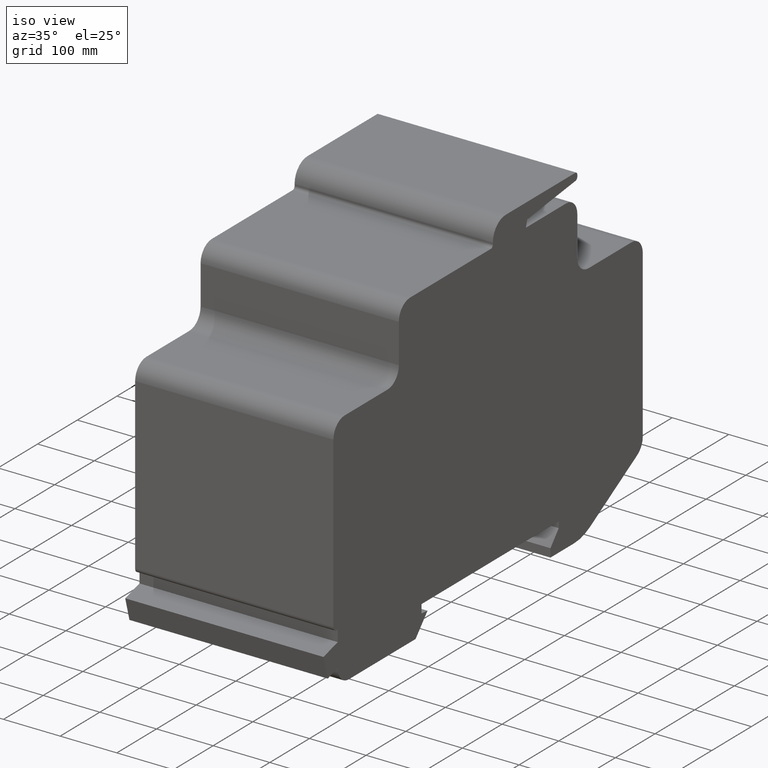
[diagram: clean part render]
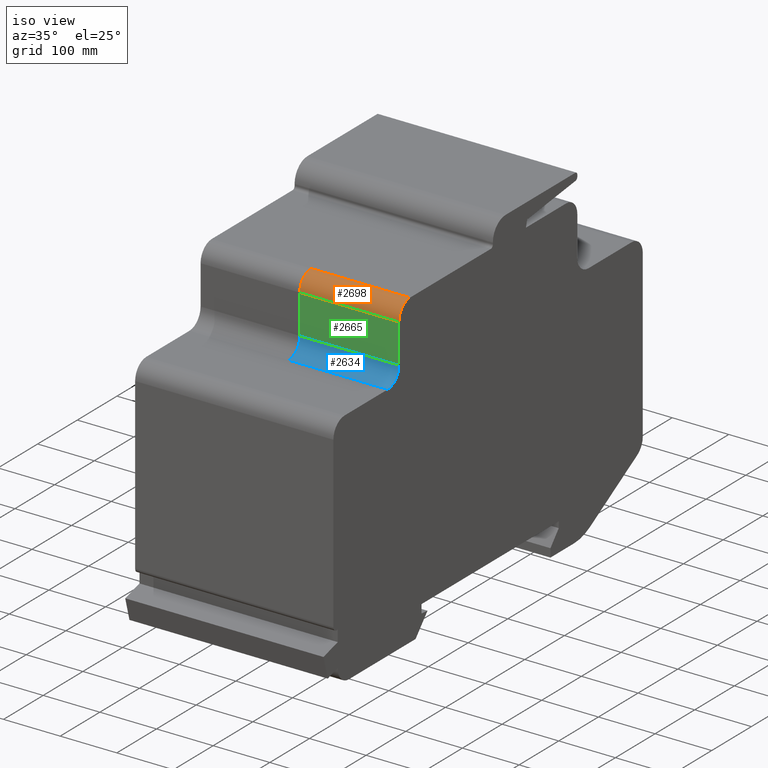
[diagram: same view with three faces highlighted in distinct colors, each labeled with its STEP entity id]
A machine part, iso view with three faces highlighted in distinct colors.
Their STEP definitions:

[orange] entity #2698 — the highlighted cylindrical surface (edge-blend (fillet) strip) has radius 28 mm, axis along (1, 0, 0).
#2640=CARTESIAN_POINT('',(350.00000000000057,-403.20000000000022,472.0));
#2641=VERTEX_POINT('',#2640);
#2648=CARTESIAN_POINT('',(175.00000000000028,-403.20000000000022,472.0));
#2649=VERTEX_POINT('',#2648);
#2650=CARTESIAN_POINT('',(175.00000000000028,-403.20000000000022,472.0));
#2651=DIRECTION('',(1.0,0.0,0.0));
#2652=VECTOR('',#2651,175.00000000000028);
#2653=LINE('',#2650,#2652);
#2654=EDGE_CURVE('',#2649,#2641,#2653,.T.);
#2666=CARTESIAN_POINT('',(175.00000000000028,-375.20000000000027,471.99999999999989));
#2667=DIRECTION('',(1.0,0.0,0.0));
#2668=DIRECTION('',(0.0,-0.707106781186545,0.70710678118655));
#2669=AXIS2_PLACEMENT_3D('',#2666,#2667,#2668);
#2670=CYLINDRICAL_SURFACE('',#2669,28.000000000000004);
#2671=CARTESIAN_POINT('',(350.00000000000057,-375.2000000000001,499.99999999999994));
#2672=VERTEX_POINT('',#2671);
#2673=CARTESIAN_POINT('',(350.00000000000057,-375.20000000000027,471.99999999999989));
#2674=DIRECTION('',(-1.0,0.0,0.0));
#2675=DIRECTION('',(0.0,-0.707106781186545,0.70710678118655));
#2676=AXIS2_PLACEMENT_3D('',#2673,#2674,#2675);
#2677=CIRCLE('',#2676,28.000000000000004);
#2678=EDGE_CURVE('',#2641,#2672,#2677,.T.);
#2679=ORIENTED_EDGE('',*,*,#2678,.T.);
#2680=CARTESIAN_POINT('',(175.00000000000028,-375.2000000000001,499.99999999999994));
#2681=VERTEX_POINT('',#2680);
#2682=CARTESIAN_POINT('',(175.00000000000028,-375.2000000000001,499.99999999999994));
#2683=DIRECTION('',(1.0,0.0,0.0));
#2684=VECTOR('',#2683,175.00000000000028);
#2685=LINE('',#2682,#2684);
#2686=EDGE_CURVE('',#2681,#2672,#2685,.T.);
#2687=ORIENTED_EDGE('',*,*,#2686,.F.);
#2688=CARTESIAN_POINT('',(175.00000000000028,-375.20000000000027,471.99999999999989));
#2689=DIRECTION('',(-1.0,0.0,0.0));
#2690=DIRECTION('',(0.0,-0.707106781186545,0.70710678118655));
#2691=AXIS2_PLACEMENT_3D('',#2688,#2689,#2690);
#2692=CIRCLE('',#2691,28.000000000000004);
#2693=EDGE_CURVE('',#2649,#2681,#2692,.T.);
#2694=ORIENTED_EDGE('',*,*,#2693,.F.);
#2695=ORIENTED_EDGE('',*,*,#2654,.T.);
#2696=EDGE_LOOP('',(#2679,#2687,#2694,#2695));
#2697=FACE_OUTER_BOUND('',#2696,.T.);
#2698=ADVANCED_FACE('',(#2697),#2670,.T.);

[blue] entity #2634 — the highlighted cylindrical surface (edge-blend (fillet) strip) has radius 28 mm, axis along (1, 0, 0).
#2576=CARTESIAN_POINT('',(350.00000000000057,-431.19999999999976,375.0));
#2577=VERTEX_POINT('',#2576);
#2584=CARTESIAN_POINT('',(175.00000000000028,-431.19999999999976,375.0));
#2585=VERTEX_POINT('',#2584);
#2586=CARTESIAN_POINT('',(175.00000000000028,-431.19999999999976,375.0));
#2587=DIRECTION('',(1.0,0.0,0.0));
#2588=VECTOR('',#2587,175.00000000000028);
#2589=LINE('',#2586,#2588);
#2590=EDGE_CURVE('',#2585,#2577,#2589,.T.);
#2602=CARTESIAN_POINT('',(175.00000000000028,-431.19999999999959,402.99999999999989));
#2603=DIRECTION('',(1.0,0.0,0.0));
#2604=DIRECTION('',(0.0,0.707106781186551,-0.707106781186544));
#2605=AXIS2_PLACEMENT_3D('',#2602,#2603,#2604);
#2606=CYLINDRICAL_SURFACE('',#2605,27.999999999999918);
#2607=CARTESIAN_POINT('',(350.00000000000057,-403.19999999999982,403.00000000000023));
#2608=VERTEX_POINT('',#2607);
#2609=CARTESIAN_POINT('',(350.00000000000057,-431.19999999999959,402.99999999999989));
#2610=DIRECTION('',(1.0,0.0,0.0));
#2611=DIRECTION('',(0.0,0.707106781186551,-0.707106781186544));
#2612=AXIS2_PLACEMENT_3D('',#2609,#2610,#2611);
#2613=CIRCLE('',#2612,27.999999999999918);
#2614=EDGE_CURVE('',#2577,#2608,#2613,.T.);
#2615=ORIENTED_EDGE('',*,*,#2614,.T.);
#2616=CARTESIAN_POINT('',(175.00000000000028,-403.19999999999982,403.00000000000023));
#2617=VERTEX_POINT('',#2616);
#2618=CARTESIAN_POINT('',(175.00000000000028,-403.19999999999982,403.00000000000023));
#2619=DIRECTION('',(1.0,0.0,0.0));
#2620=VECTOR('',#2619,175.00000000000028);
#2621=LINE('',#2618,#2620);
#2622=EDGE_CURVE('',#2617,#2608,#2621,.T.);
#2623=ORIENTED_EDGE('',*,*,#2622,.F.);
#2624=CARTESIAN_POINT('',(175.00000000000028,-431.19999999999959,402.99999999999989));
#2625=DIRECTION('',(1.0,0.0,0.0));
#2626=DIRECTION('',(0.0,0.707106781186551,-0.707106781186544));
#2627=AXIS2_PLACEMENT_3D('',#2624,#2625,#2626);
#2628=CIRCLE('',#2627,27.999999999999918);
#2629=EDGE_CURVE('',#2585,#2617,#2628,.T.);
#2630=ORIENTED_EDGE('',*,*,#2629,.F.);
#2631=ORIENTED_EDGE('',*,*,#2590,.T.);
#2632=EDGE_LOOP('',(#2615,#2623,#2630,#2631));
#2633=FACE_OUTER_BOUND('',#2632,.T.);
#2634=ADVANCED_FACE('',(#2633),#2606,.F.);

[green] entity #2665 — the highlighted planar face has unit normal (0, -1, 0).
#2607=CARTESIAN_POINT('',(350.00000000000057,-403.19999999999982,403.00000000000023));
#2608=VERTEX_POINT('',#2607);
#2616=CARTESIAN_POINT('',(175.00000000000028,-403.19999999999982,403.00000000000023));
#2617=VERTEX_POINT('',#2616);
#2618=CARTESIAN_POINT('',(175.00000000000028,-403.19999999999982,403.00000000000023));
#2619=DIRECTION('',(1.0,0.0,0.0));
#2620=VECTOR('',#2619,175.00000000000028);
#2621=LINE('',#2618,#2620);
#2622=EDGE_CURVE('',#2617,#2608,#2621,.T.);
#2635=CARTESIAN_POINT('',(175.00000000000028,-403.19999999999982,403.00000000000023));
#2636=DIRECTION('',(0.0,-1.0,0.0));
#2637=DIRECTION('',(0.0,0.0,-1.0));
#2638=AXIS2_PLACEMENT_3D('',#2635,#2636,#2637);
#2639=PLANE('',#2638);
#2640=CARTESIAN_POINT('',(350.00000000000057,-403.20000000000022,472.0));
#2641=VERTEX_POINT('',#2640);
#2642=CARTESIAN_POINT('',(350.00000000000057,-403.19999999999982,403.00000000000023));
#2643=DIRECTION('',(0.0,0.0,1.0));
#2644=VECTOR('',#2643,68.999999999999773);
#2645=LINE('',#2642,#2644);
#2646=EDGE_CURVE('',#2608,#2641,#2645,.T.);
#2647=ORIENTED_EDGE('',*,*,#2646,.T.);
#2648=CARTESIAN_POINT('',(175.00000000000028,-403.20000000000022,472.0));
#2649=VERTEX_POINT('',#2648);
#2650=CARTESIAN_POINT('',(175.00000000000028,-403.20000000000022,472.0));
#2651=DIRECTION('',(1.0,0.0,0.0));
#2652=VECTOR('',#2651,175.00000000000028);
#2653=LINE('',#2650,#2652);
#2654=EDGE_CURVE('',#2649,#2641,#2653,.T.);
#2655=ORIENTED_EDGE('',*,*,#2654,.F.);
#2656=CARTESIAN_POINT('',(175.00000000000028,-403.19999999999982,403.00000000000023));
#2657=DIRECTION('',(0.0,0.0,1.0));
#2658=VECTOR('',#2657,68.999999999999773);
#2659=LINE('',#2656,#2658);
#2660=EDGE_CURVE('',#2617,#2649,#2659,.T.);
#2661=ORIENTED_EDGE('',*,*,#2660,.F.);
#2662=ORIENTED_EDGE('',*,*,#2622,.T.);
#2663=EDGE_LOOP('',(#2647,#2655,#2661,#2662));
#2664=FACE_OUTER_BOUND('',#2663,.T.);
#2665=ADVANCED_FACE('',(#2664),#2639,.T.);